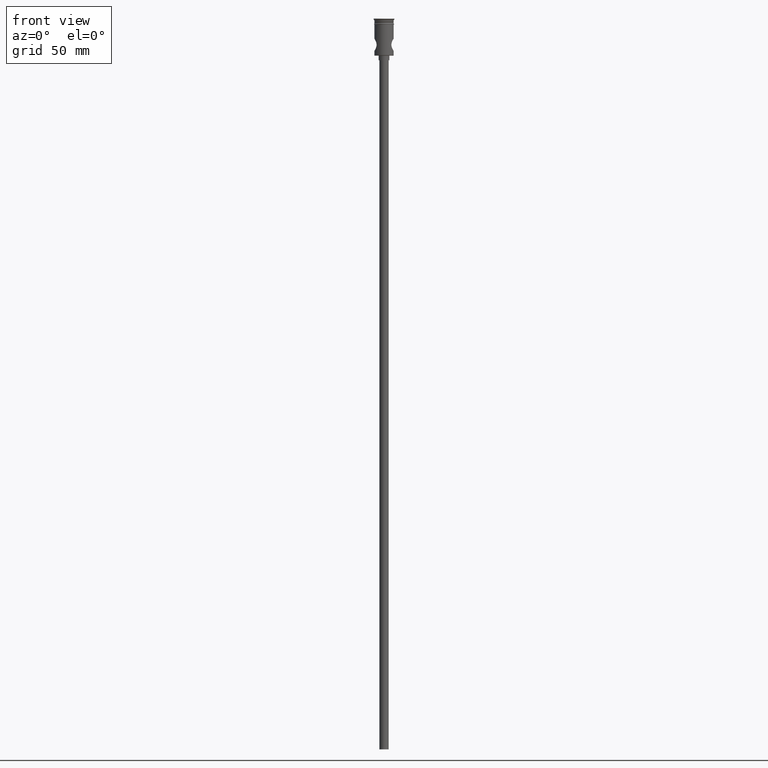
[diagram: clean part render]
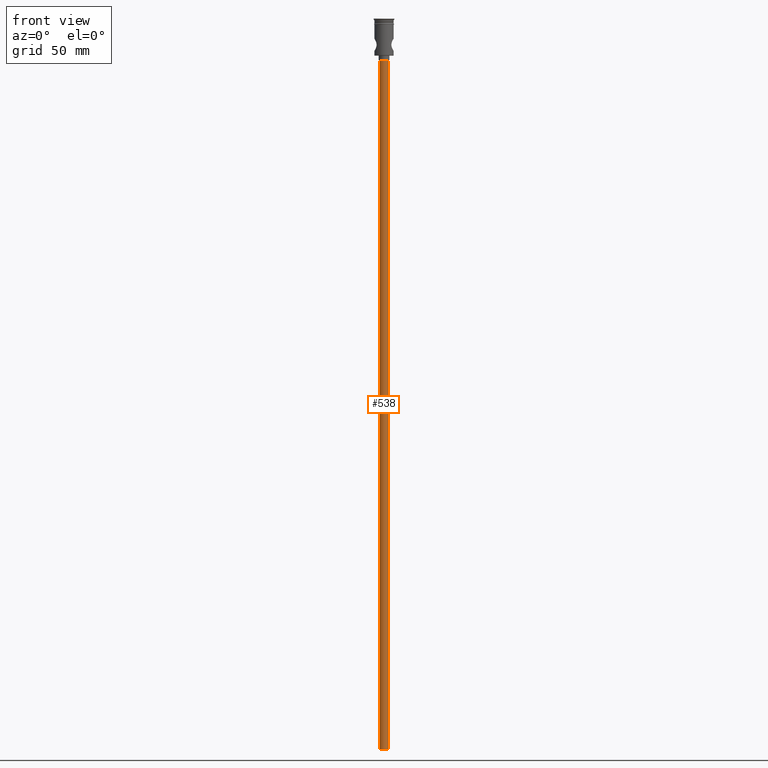
[diagram: same view with one face highlighted and labeled with its STEP entity id]
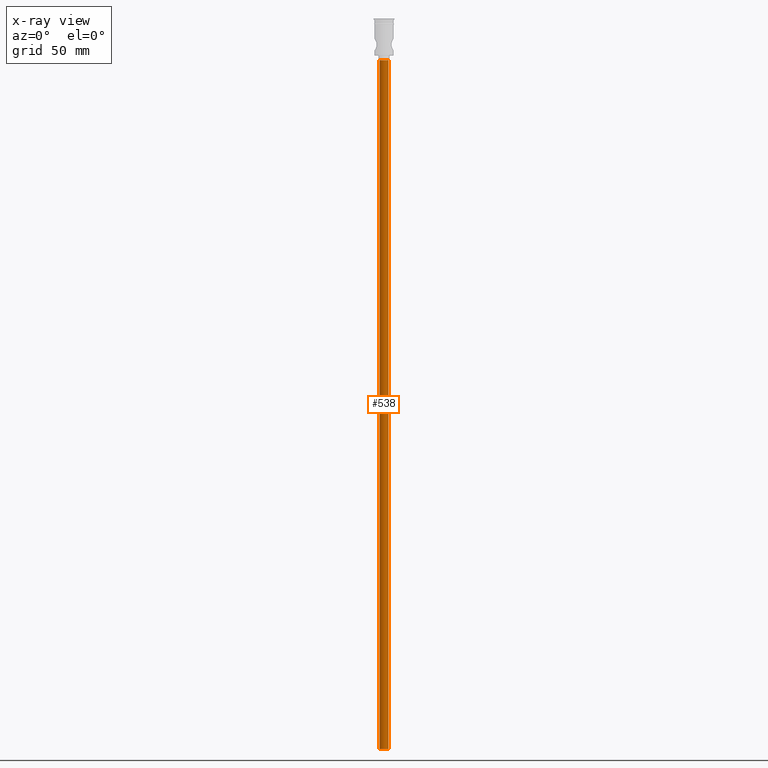
[diagram: x-ray of the same camera — body ghosted, the highlighted face saturated]
A machine part, front view. The second image highlights one B-rep face of the part: STEP entity #538.
The next image is the same camera in x-ray: the body ghosted, the highlighted face saturated — about 0% of this face is hidden behind the body in this view.
In plain terms, the highlighted cylindrical surface (edge-blend (fillet) strip) has radius 3 mm, axis along (-0, -0, 1).
Its self-contained STEP definition (entity closure, byte-faithful):
#44 = ORIENTED_EDGE ( 'NONE', *, *, #514, .F. ) ;
#236 = CIRCLE ( 'NONE', #260, 3.000000000000000444 ) ;
#240 = LINE ( 'NONE', #918, #1469 ) ;
#250 = FACE_OUTER_BOUND ( 'NONE', #398, .T. ) ;
#260 = AXIS2_PLACEMENT_3D ( 'NONE', #956, #1301, #1410 ) ;
#304 = CARTESIAN_POINT ( 'NONE',  ( -3.000000000000000444, 3.673940397442060361E-16, -474.0000000000000568 ) ) ;
#355 = EDGE_CURVE ( 'NONE', #1100, #1409, #240, .T. ) ;
#398 = EDGE_LOOP ( 'NONE', ( #44, #1248, #413, #1324 ) ) ;
#413 = ORIENTED_EDGE ( 'NONE', *, *, #355, .T. ) ;
#451 = CARTESIAN_POINT ( 'NONE',  ( 0.000000000000000000, 0.000000000000000000, -474.0000000000000568 ) ) ;
#514 = EDGE_CURVE ( 'NONE', #1004, #1395, #782, .T. ) ;
#525 = CARTESIAN_POINT ( 'NONE',  ( -3.000000000000000444, 3.673940397442060361E-16, -27.00000000000000000 ) ) ;
#538 = ADVANCED_FACE ( 'NONE', ( #250 ), #1267, .T. ) ;
#631 = CARTESIAN_POINT ( 'NONE',  ( -3.000000000000000444, 3.673940397442060361E-16, -474.0000000000000568 ) ) ;
#652 = DIRECTION ( 'NONE',  ( 0.000000000000000000, 0.000000000000000000, -1.000000000000000000 ) ) ;
#742 = EDGE_CURVE ( 'NONE', #1100, #1004, #236, .T. ) ;
#775 = DIRECTION ( 'NONE',  ( -0.000000000000000000, -0.000000000000000000, 1.000000000000000000 ) ) ;
#782 = LINE ( 'NONE', #304, #989 ) ;
#798 = DIRECTION ( 'NONE',  ( 1.000000000000000000, 0.000000000000000000, 0.000000000000000000 ) ) ;
#808 = DIRECTION ( 'NONE',  ( -0.000000000000000000, -0.000000000000000000, 1.000000000000000000 ) ) ;
#918 = CARTESIAN_POINT ( 'NONE',  ( 3.000000000000000444, 0.000000000000000000, -474.0000000000000568 ) ) ;
#919 = DIRECTION ( 'NONE',  ( -1.000000000000000000, 0.000000000000000000, 0.000000000000000000 ) ) ;
#956 = CARTESIAN_POINT ( 'NONE',  ( 0.000000000000000000, 0.000000000000000000, -474.0000000000000568 ) ) ;
#964 = CARTESIAN_POINT ( 'NONE',  ( 3.000000000000000444, 0.000000000000000000, -27.00000000000000000 ) ) ;
#989 = VECTOR ( 'NONE', #775, 1000.000000000000000 ) ;
#991 = CIRCLE ( 'NONE', #1043, 3.000000000000000444 ) ;
#1004 = VERTEX_POINT ( 'NONE', #631 ) ;
#1043 = AXIS2_PLACEMENT_3D ( 'NONE', #1307, #652, #919 ) ;
#1080 = DIRECTION ( 'NONE',  ( -0.000000000000000000, -0.000000000000000000, 1.000000000000000000 ) ) ;
#1100 = VERTEX_POINT ( 'NONE', #1141 ) ;
#1141 = CARTESIAN_POINT ( 'NONE',  ( 3.000000000000000444, 0.000000000000000000, -474.0000000000000568 ) ) ;
#1155 = AXIS2_PLACEMENT_3D ( 'NONE', #451, #808, #798 ) ;
#1248 = ORIENTED_EDGE ( 'NONE', *, *, #742, .F. ) ;
#1267 = CYLINDRICAL_SURFACE ( 'NONE', #1155, 3.000000000000000444 ) ;
#1301 = DIRECTION ( 'NONE',  ( 0.000000000000000000, 0.000000000000000000, -1.000000000000000000 ) ) ;
#1307 = CARTESIAN_POINT ( 'NONE',  ( 0.000000000000000000, 0.000000000000000000, -27.00000000000000000 ) ) ;
#1324 = ORIENTED_EDGE ( 'NONE', *, *, #1425, .T. ) ;
#1395 = VERTEX_POINT ( 'NONE', #525 ) ;
#1409 = VERTEX_POINT ( 'NONE', #964 ) ;
#1410 = DIRECTION ( 'NONE',  ( -1.000000000000000000, 0.000000000000000000, 0.000000000000000000 ) ) ;
#1425 = EDGE_CURVE ( 'NONE', #1409, #1395, #991, .T. ) ;
#1469 = VECTOR ( 'NONE', #1080, 1000.000000000000000 ) ;